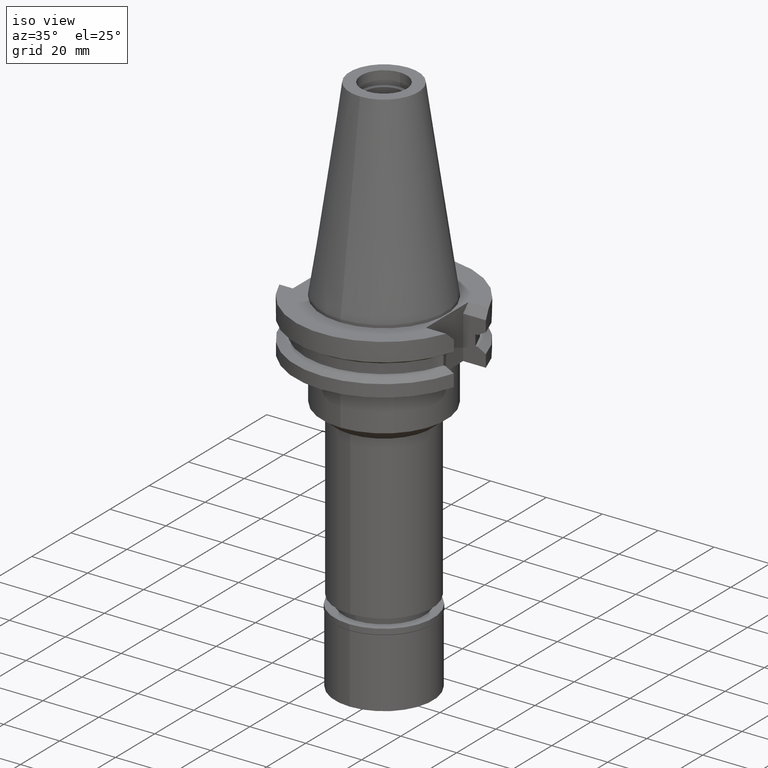
[diagram: clean part render]
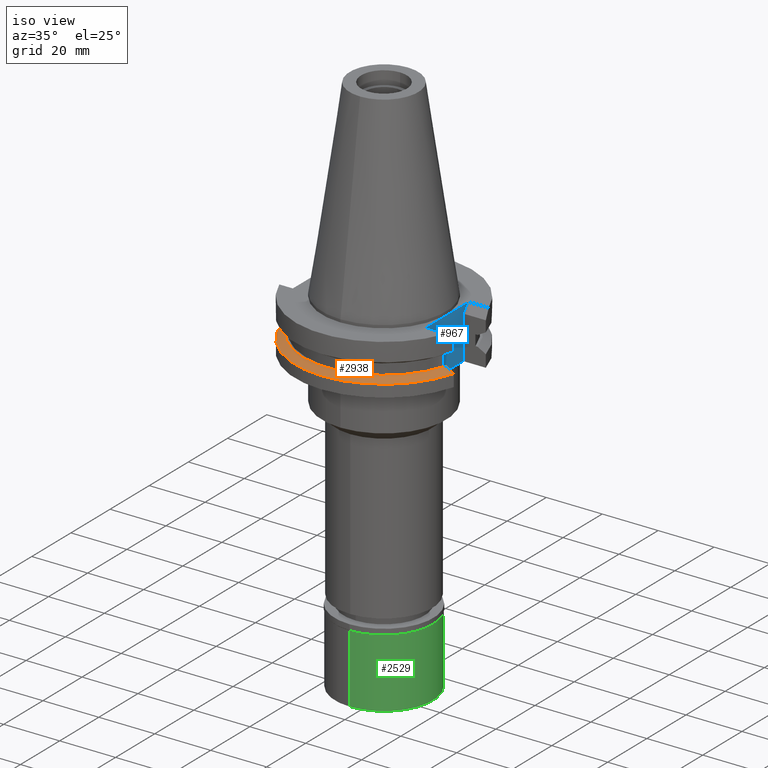
[diagram: same view with three faces highlighted in distinct colors, each labeled with its STEP entity id]
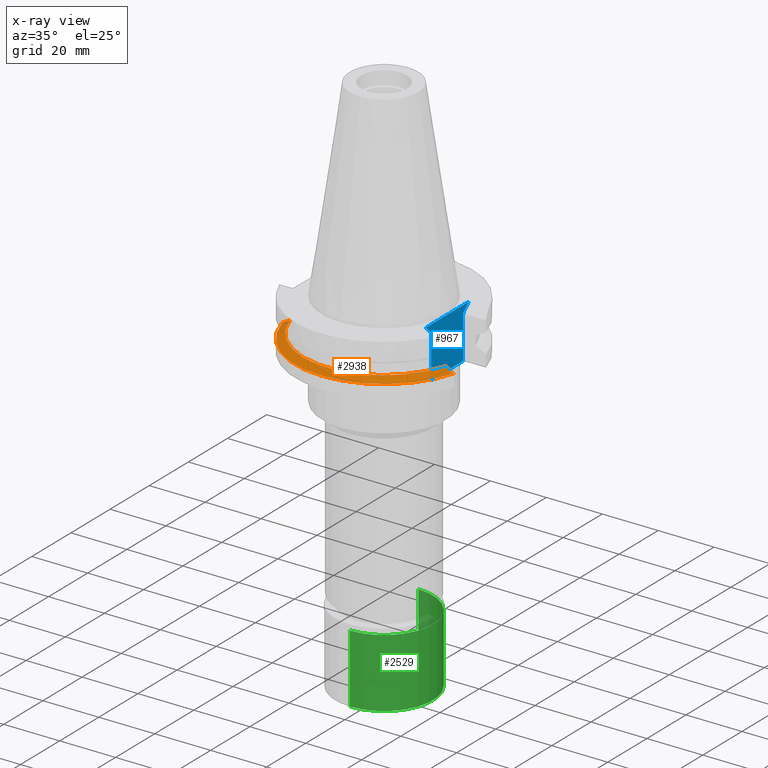
[diagram: x-ray of the same camera — body ghosted, the three highlighted faces saturated]
A machine part, iso view with three faces highlighted in distinct colors.
The next image is the same camera in x-ray (body ghosted, the three faces saturated) — at least one of them is partly hidden behind the body in this view.
Their STEP definitions:

[orange] entity #2938 — the highlighted conical surface has half-angle 60 deg.
#10 = CARTESIAN_POINT ( 'NONE',  ( -30.34707982926000014, -8.189999874273000913, -14.47046823332999921 ) ) ;
#148 = DIRECTION ( 'NONE',  ( 0.9661575315241073270, -0.2579527559055020958, 0.0000000000000000000 ) ) ;
#275 = B_SPLINE_CURVE_WITH_KNOTS ( 'NONE', 3,
 ( #1738, #3309, #994, #2542, #2860, #3134 ),
 .UNSPECIFIED., .F., .F.,
 ( 4, 1, 1, 4 ),
 ( 0.0000000000000000000, 0.3333333333333000081, 0.6666666666667000474, 1.000000000000000000 ),
 .UNSPECIFIED. ) ;
#317 = ORIENTED_EDGE ( 'NONE', *, *, #1072, .F. ) ;
#400 = DIRECTION ( 'NONE',  ( 0.0000000000000000000, -1.000000000000000000, 0.0000000000000000000 ) ) ;
#606 = CARTESIAN_POINT ( 'NONE',  ( -28.73206700512000111, -8.190000281780999813, -13.57180718793999930 ) ) ;
#639 = CARTESIAN_POINT ( 'NONE',  ( -28.09983037531000249, -8.189999360262000039, -13.22119961495000062 ) ) ;
#717 = CARTESIAN_POINT ( 'NONE',  ( -27.78617704656999976, -8.189999360262000039, -13.04749999999999943 ) ) ;
#802 = CARTESIAN_POINT ( 'NONE',  ( -27.78617704656999976, -8.189999360262000039, -13.04749999999999943 ) ) ;
#874 = ORIENTED_EDGE ( 'NONE', *, *, #1943, .F. ) ;
#969 = DIRECTION ( 'NONE',  ( 0.0000000000000000000, 0.0000000000000000000, -1.000000000000000000 ) ) ;
#994 = CARTESIAN_POINT ( 'NONE',  ( 28.73206192513000090, -8.189999991751999886, -13.57180152932999917 ) ) ;
#1014 = DIRECTION ( 'NONE',  ( 0.0000000000000000000, -1.000000000000000000, 0.0000000000000000000 ) ) ;
#1072 = EDGE_CURVE ( 'NONE', #2197, #2962, #275, .T. ) ;
#1082 = CARTESIAN_POINT ( 'NONE',  ( 27.78616453828999866, -8.190000190935000646, -13.04749999999999943 ) ) ;
#1102 = CIRCLE ( 'NONE', #1901, 31.74999999999998579 ) ;
#1119 = AXIS2_PLACEMENT_3D ( 'NONE', #1934, #1411, #400 ) ;
#1411 = DIRECTION ( 'NONE',  ( 0.0000000000000000000, 0.0000000000000000000, -1.000000000000000000 ) ) ;
#1495 = CARTESIAN_POINT ( 'NONE',  ( 0.0000000000000000000, 0.0000000000000000000, -14.65366676908000088 ) ) ;
#1504 = ORIENTED_EDGE ( 'NONE', *, *, #1630, .F. ) ;
#1630 = EDGE_CURVE ( 'NONE', #1818, #1828, #1675, .T. ) ;
#1675 = B_SPLINE_CURVE_WITH_KNOTS ( 'NONE', 3,
 ( #1978, #10, #2842, #606, #639, #802 ),
 .UNSPECIFIED., .F., .F.,
 ( 4, 1, 1, 4 ),
 ( 0.0000000000000000000, 0.3333333333333000081, 0.6666666666667000474, 1.000000000000000000 ),
 .UNSPECIFIED. ) ;
#1679 = EDGE_LOOP ( 'NONE', ( #317, #2032, #1504, #874 ) ) ;
#1696 = FACE_OUTER_BOUND ( 'NONE', #1679, .T. ) ;
#1738 = CARTESIAN_POINT ( 'NONE',  ( 27.78616453828999866, -8.190000190935000646, -13.04749999999999943 ) ) ;
#1818 = VERTEX_POINT ( 'NONE', #3193 ) ;
#1828 = VERTEX_POINT ( 'NONE', #717 ) ;
#1901 = AXIS2_PLACEMENT_3D ( 'NONE', #1495, #969, #148 ) ;
#1934 = CARTESIAN_POINT ( 'NONE',  ( 0.0000000000000000000, 0.0000000000000000000, -13.85058338454000015 ) ) ;
#1943 = EDGE_CURVE ( 'NONE', #2962, #1818, #1102, .T. ) ;
#1978 = CARTESIAN_POINT ( 'NONE',  ( -30.67550165945999652, -8.189999874273000913, -14.65366564556999940 ) ) ;
#2032 = ORIENTED_EDGE ( 'NONE', *, *, #2544, .T. ) ;
#2035 = DIRECTION ( 'NONE',  ( 0.0000000000000000000, 0.0000000000000000000, -1.000000000000000000 ) ) ;
#2076 = CONICAL_SURFACE ( 'NONE', #1119, 30.35901877526999826, 1.047197551196400456 ) ;
#2197 = VERTEX_POINT ( 'NONE', #1082 ) ;
#2307 = CARTESIAN_POINT ( 'NONE',  ( 0.0000000000000000000, 0.0000000000000000000, -13.04749999999999943 ) ) ;
#2542 = CARTESIAN_POINT ( 'NONE',  ( 29.69516355573000155, -8.189999742464999954, -14.10721154023999979 ) ) ;
#2544 = EDGE_CURVE ( 'NONE', #2197, #1828, #3266, .T. ) ;
#2673 = AXIS2_PLACEMENT_3D ( 'NONE', #2307, #2035, #1014 ) ;
#2679 = CARTESIAN_POINT ( 'NONE',  ( 30.67550146398999900, -8.190000606413999407, -14.65367218811000072 ) ) ;
#2842 = CARTESIAN_POINT ( 'NONE',  ( -29.69516509217000078, -8.189999973374000319, -14.10721505759000038 ) ) ;
#2860 = CARTESIAN_POINT ( 'NONE',  ( 30.34707374722000139, -8.190000606413999407, -14.47047149578999914 ) ) ;
#2938 = ADVANCED_FACE ( 'NONE', ( #1696 ), #2076, .T. ) ;
#2962 = VERTEX_POINT ( 'NONE', #2679 ) ;
#3134 = CARTESIAN_POINT ( 'NONE',  ( 30.67550146398999900, -8.190000606413999407, -14.65367218811000072 ) ) ;
#3193 = CARTESIAN_POINT ( 'NONE',  ( -30.67550165945999652, -8.189999874273000913, -14.65366564556999940 ) ) ;
#3266 = CIRCLE ( 'NONE', #2673, 28.96803755052999918 ) ;
#3309 = CARTESIAN_POINT ( 'NONE',  ( 28.09983024273999774, -8.190000190935000646, -13.22120646395999977 ) ) ;

[blue] entity #967 — the highlighted planar face has unit normal (1, 0, 0).
#136 = EDGE_LOOP ( 'NONE', ( #888, #1871, #2912, #390, #2980, #2603 ) ) ;
#139 = VECTOR ( 'NONE', #1826, 1000.000000000000000 ) ;
#184 = EDGE_CURVE ( 'NONE', #334, #1626, #1263, .T. ) ;
#211 = CARTESIAN_POINT ( 'NONE',  ( 22.57000000000000028, -8.189999999999999503, -3.700000000000000178 ) ) ;
#216 = CARTESIAN_POINT ( 'NONE',  ( 22.57000000000000028, 0.0000000000000000000, 0.0000000000000000000 ) ) ;
#233 = EDGE_CURVE ( 'NONE', #1207, #2812, #3068, .T. ) ;
#334 = VERTEX_POINT ( 'NONE', #211 ) ;
#390 = ORIENTED_EDGE ( 'NONE', *, *, #184, .F. ) ;
#505 = EDGE_CURVE ( 'NONE', #910, #334, #2632, .T. ) ;
#757 = CARTESIAN_POINT ( 'NONE',  ( 22.57000000000000028, 10.89000000000000057, -1.000000000000000000 ) ) ;
#773 = CARTESIAN_POINT ( 'NONE',  ( 22.57000000000000028, -8.189999999999999503, -19.05000000000000071 ) ) ;
#786 = VECTOR ( 'NONE', #1291, 1000.000000000000000 ) ;
#888 = ORIENTED_EDGE ( 'NONE', *, *, #3187, .F. ) ;
#902 = LINE ( 'NONE', #2570, #786 ) ;
#910 = VERTEX_POINT ( 'NONE', #773 ) ;
#967 = ADVANCED_FACE ( 'NONE', ( #2256 ), #2814, .T. ) ;
#1000 = VECTOR ( 'NONE', #2316, 1000.000000000000000 ) ;
#1091 = CARTESIAN_POINT ( 'NONE',  ( 22.57000000000000028, 10.89000000000000057, -1.000000000000000000 ) ) ;
#1207 = VERTEX_POINT ( 'NONE', #1091 ) ;
#1263 = LINE ( 'NONE', #1750, #1532 ) ;
#1291 = DIRECTION ( 'NONE',  ( 0.0000000000000000000, -1.000000000000000000, 0.0000000000000000000 ) ) ;
#1532 = VECTOR ( 'NONE', #2979, 1000.000000000000114 ) ;
#1626 = VERTEX_POINT ( 'NONE', #3078 ) ;
#1660 = VECTOR ( 'NONE', #2458, 1000.000000000000000 ) ;
#1726 = EDGE_CURVE ( 'NONE', #2350, #910, #2145, .T. ) ;
#1750 = CARTESIAN_POINT ( 'NONE',  ( 22.57000000000000028, -8.189999999999999503, -3.700000000000000178 ) ) ;
#1798 = EDGE_CURVE ( 'NONE', #1207, #1626, #902, .T. ) ;
#1826 = DIRECTION ( 'NONE',  ( 0.0000000000000000000, 0.0000000000000000000, 1.000000000000000000 ) ) ;
#1871 = ORIENTED_EDGE ( 'NONE', *, *, #233, .F. ) ;
#2145 = LINE ( 'NONE', #3096, #1000 ) ;
#2218 = CARTESIAN_POINT ( 'NONE',  ( 22.57000000000000028, 8.189999999999999503, -19.05000000000000071 ) ) ;
#2256 = FACE_OUTER_BOUND ( 'NONE', #136, .T. ) ;
#2279 = VECTOR ( 'NONE', #2281, 1000.000000000000114 ) ;
#2281 = DIRECTION ( 'NONE',  ( 0.0000000000000000000, -0.7071067811865474617, -0.7071067811865474617 ) ) ;
#2316 = DIRECTION ( 'NONE',  ( 0.0000000000000000000, -1.000000000000000000, 0.0000000000000000000 ) ) ;
#2350 = VERTEX_POINT ( 'NONE', #2218 ) ;
#2414 = CARTESIAN_POINT ( 'NONE',  ( 22.57000000000000028, -8.189999999999999503, -19.05000000000000071 ) ) ;
#2458 = DIRECTION ( 'NONE',  ( 0.0000000000000000000, 0.0000000000000000000, -1.000000000000000000 ) ) ;
#2570 = CARTESIAN_POINT ( 'NONE',  ( 22.57000000000000028, 10.89000000000000057, -1.000000000000000000 ) ) ;
#2603 = ORIENTED_EDGE ( 'NONE', *, *, #1726, .F. ) ;
#2610 = AXIS2_PLACEMENT_3D ( 'NONE', #216, #2767, #3329 ) ;
#2632 = LINE ( 'NONE', #2414, #139 ) ;
#2767 = DIRECTION ( 'NONE',  ( 1.000000000000000000, 0.0000000000000000000, 0.0000000000000000000 ) ) ;
#2812 = VERTEX_POINT ( 'NONE', #2913 ) ;
#2814 = PLANE ( 'NONE',  #2610 ) ;
#2912 = ORIENTED_EDGE ( 'NONE', *, *, #1798, .T. ) ;
#2913 = CARTESIAN_POINT ( 'NONE',  ( 22.57000000000000028, 8.189999999999999503, -3.700000000000000178 ) ) ;
#2979 = DIRECTION ( 'NONE',  ( 0.0000000000000000000, -0.7071067811865474617, 0.7071067811865474617 ) ) ;
#2980 = ORIENTED_EDGE ( 'NONE', *, *, #505, .F. ) ;
#3019 = LINE ( 'NONE', #3055, #1660 ) ;
#3055 = CARTESIAN_POINT ( 'NONE',  ( 22.57000000000000028, 8.189999999999999503, -3.700000000000000178 ) ) ;
#3068 = LINE ( 'NONE', #757, #2279 ) ;
#3078 = CARTESIAN_POINT ( 'NONE',  ( 22.57000000000000028, -10.89000000000000057, -1.000000000000000000 ) ) ;
#3096 = CARTESIAN_POINT ( 'NONE',  ( 22.57000000000000028, 8.189999999999999503, -19.05000000000000071 ) ) ;
#3187 = EDGE_CURVE ( 'NONE', #2812, #2350, #3019, .T. ) ;
#3329 = DIRECTION ( 'NONE',  ( 0.0000000000000000000, 1.000000000000000000, 0.0000000000000000000 ) ) ;

[green] entity #2529 — the highlighted cylindrical surface (partial cylindrical patch) has radius 17.5 mm, axis along (0, 0, -1).
#151 = CIRCLE ( 'NONE', #2022, 17.50000000000000000 ) ;
#187 = CARTESIAN_POINT ( 'NONE',  ( 0.0000000000000000000, 17.50000000000000000, -2.100000000000000089 ) ) ;
#309 = ORIENTED_EDGE ( 'NONE', *, *, #587, .F. ) ;
#353 = CARTESIAN_POINT ( 'NONE',  ( 0.0000000000000000000, 0.0000000000000000000, -2.100000000000000089 ) ) ;
#481 = VECTOR ( 'NONE', #1587, 1000.000000000000000 ) ;
#549 = ORIENTED_EDGE ( 'NONE', *, *, #622, .T. ) ;
#552 = FACE_OUTER_BOUND ( 'NONE', #2758, .T. ) ;
#563 = ORIENTED_EDGE ( 'NONE', *, *, #2961, .T. ) ;
#575 = AXIS2_PLACEMENT_3D ( 'NONE', #353, #1353, #1366 ) ;
#587 = EDGE_CURVE ( 'NONE', #2914, #3156, #2866, .T. ) ;
#608 = VERTEX_POINT ( 'NONE', #1624 ) ;
#618 = ORIENTED_EDGE ( 'NONE', *, *, #1665, .T. ) ;
#622 = EDGE_CURVE ( 'NONE', #2914, #608, #2335, .T. ) ;
#623 = DIRECTION ( 'NONE',  ( 0.0000000000000000000, 0.0000000000000000000, 1.000000000000000000 ) ) ;
#1227 = VECTOR ( 'NONE', #1429, 1000.000000000000000 ) ;
#1241 = DIRECTION ( 'NONE',  ( 0.0000000000000000000, -1.000000000000000000, 0.0000000000000000000 ) ) ;
#1353 = DIRECTION ( 'NONE',  ( 0.0000000000000000000, 0.0000000000000000000, -1.000000000000000000 ) ) ;
#1366 = DIRECTION ( 'NONE',  ( 0.0000000000000000000, 1.000000000000000000, 0.0000000000000000000 ) ) ;
#1429 = DIRECTION ( 'NONE',  ( 0.0000000000000000000, 0.0000000000000000000, -1.000000000000000000 ) ) ;
#1537 = CYLINDRICAL_SURFACE ( 'NONE', #1799, 17.50000000000000000 ) ;
#1558 = CARTESIAN_POINT ( 'NONE',  ( 0.0000000000000000000, 0.0000000000000000000, -26.70000000000000284 ) ) ;
#1587 = DIRECTION ( 'NONE',  ( 0.0000000000000000000, 0.0000000000000000000, -1.000000000000000000 ) ) ;
#1624 = CARTESIAN_POINT ( 'NONE',  ( 0.0000000000000000000, -17.50000000000000000, -2.100000000000000089 ) ) ;
#1652 = CARTESIAN_POINT ( 'NONE',  ( 0.0000000000000000000, -17.50000000000000000, -2.100000000000000089 ) ) ;
#1665 = EDGE_CURVE ( 'NONE', #2711, #3156, #151, .T. ) ;
#1799 = AXIS2_PLACEMENT_3D ( 'NONE', #2518, #3035, #1241 ) ;
#1979 = LINE ( 'NONE', #1652, #1227 ) ;
#2022 = AXIS2_PLACEMENT_3D ( 'NONE', #1558, #623, #2942 ) ;
#2335 = CIRCLE ( 'NONE', #575, 17.50000000000000000 ) ;
#2518 = CARTESIAN_POINT ( 'NONE',  ( 0.0000000000000000000, 0.0000000000000000000, 0.0000000000000000000 ) ) ;
#2529 = ADVANCED_FACE ( 'NONE', ( #552 ), #1537, .T. ) ;
#2607 = CARTESIAN_POINT ( 'NONE',  ( 0.0000000000000000000, -17.50000000000000000, -26.70000000000000284 ) ) ;
#2711 = VERTEX_POINT ( 'NONE', #2607 ) ;
#2758 = EDGE_LOOP ( 'NONE', ( #549, #563, #618, #309 ) ) ;
#2785 = CARTESIAN_POINT ( 'NONE',  ( 0.0000000000000000000, 17.50000000000000000, -26.70000000000000284 ) ) ;
#2850 = CARTESIAN_POINT ( 'NONE',  ( 0.0000000000000000000, 17.50000000000000000, -2.100000000000000089 ) ) ;
#2866 = LINE ( 'NONE', #2850, #481 ) ;
#2914 = VERTEX_POINT ( 'NONE', #187 ) ;
#2942 = DIRECTION ( 'NONE',  ( 0.0000000000000000000, -1.000000000000000000, 0.0000000000000000000 ) ) ;
#2961 = EDGE_CURVE ( 'NONE', #608, #2711, #1979, .T. ) ;
#3035 = DIRECTION ( 'NONE',  ( 0.0000000000000000000, 0.0000000000000000000, -1.000000000000000000 ) ) ;
#3156 = VERTEX_POINT ( 'NONE', #2785 ) ;